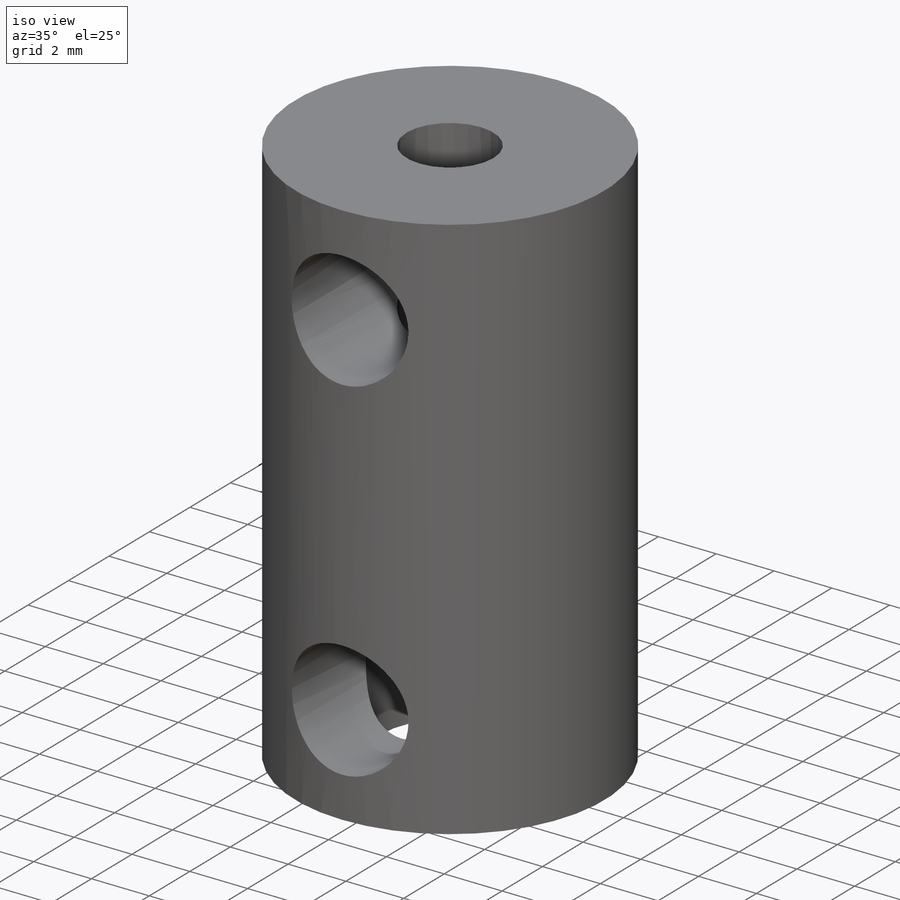
[diagram: iso view]
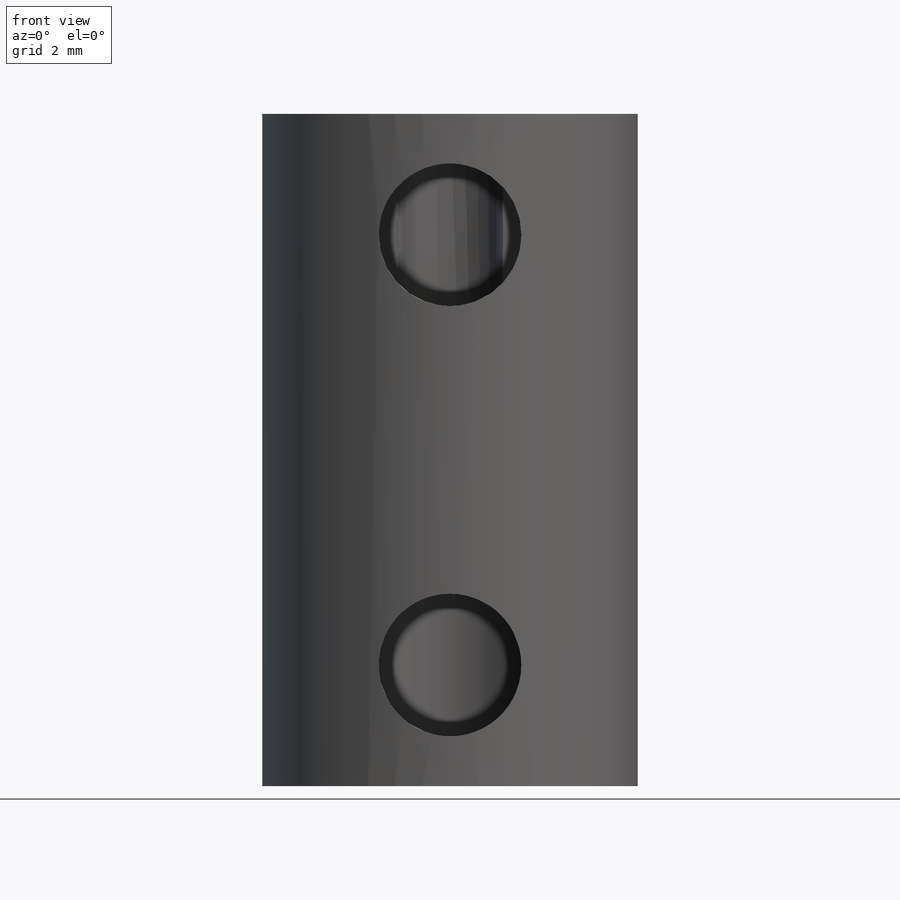
[diagram: front view]
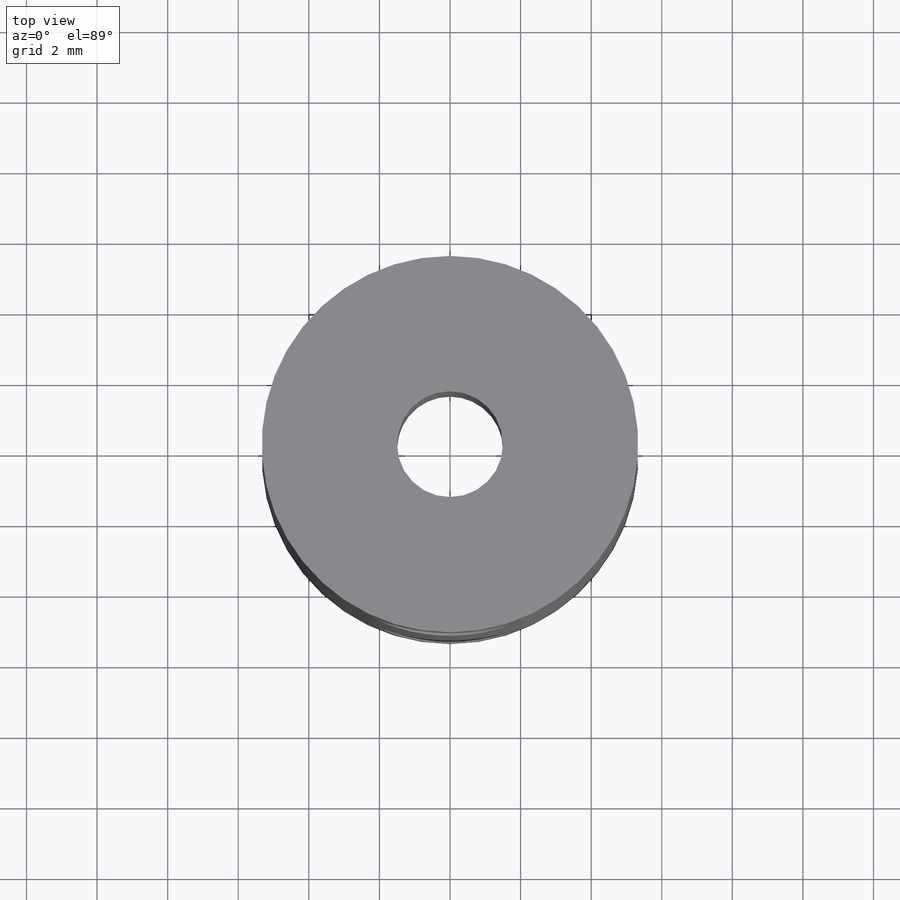
[diagram: top view]
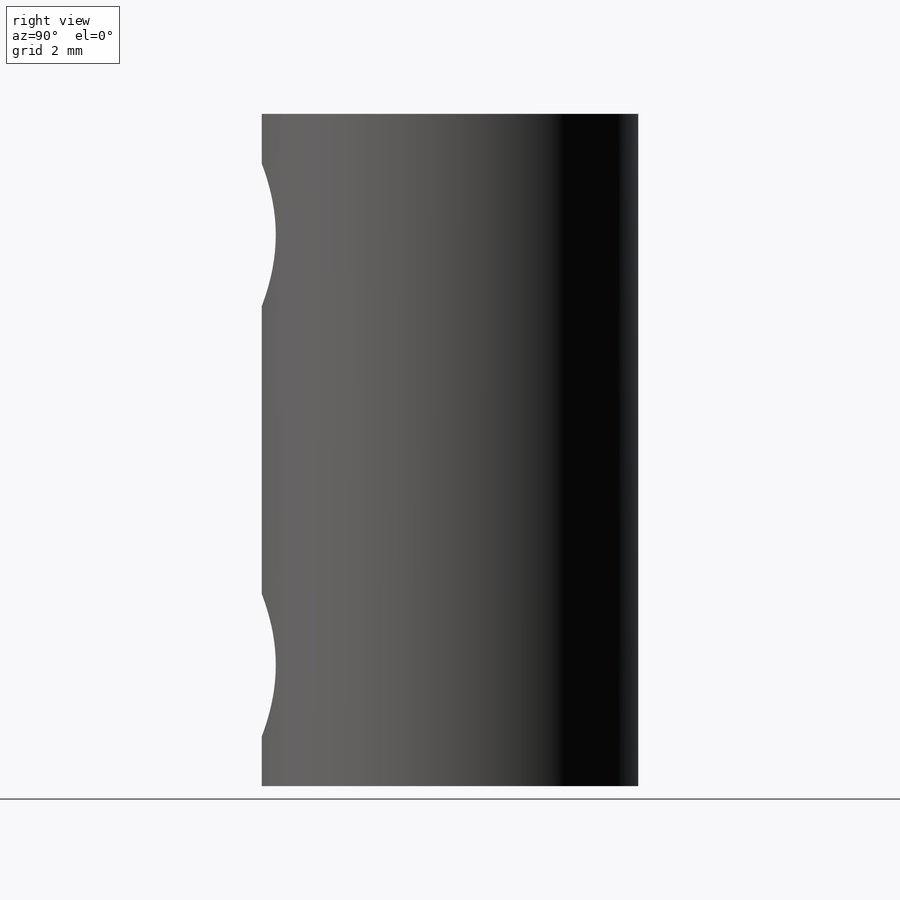
[diagram: right view]
SOLIDWORKS PART (.sldprt)
format: sldprt  version: not decoded by parser v0  size: 230,912 bytes
history: native  units: mm
features: sketch x7, hole x3, thread x2, material x1, extrude x1, plane x1 (+13 scaffold rows collapsed)
feature tree (28):
  scaffold x13  (default folders/planes/origin — collapsed)
  material  "Material <not specified>"
  sketch  "Sketch1"  dims[D1=10.668mm]
  extrude  "Boss-Extrude1"  Depth=19.05mm
  hole  "Ø3.0mm Dowel Hole3"  Diameter=3mm Depth=9.525mm
  sketch  "Sketch3"
  sketch  "Sketch2"  dims[hole-wizard template sketch: 47 standard entries collapsed; hole parameters kept: c15.Hole Depth=9.525mm c15.D3=~14.816244mm c15.Drill Angle=118.0deg]
  hole  "3/16 (0.1875) Dowel Hole1"  Diameter=4.7625mm Depth=9.525mm
  sketch  "Sketch5"
  sketch  "Sketch4"  dims[hole-wizard template sketch: 47 standard entries collapsed; hole parameters kept: c15.Hole Depth=9.525mm c15.D3=~14.816244mm c15.Drill Angle=118.0deg]
  plane  "Plane1"  Offset=9.681668mm
  hole  "#10-32 Tapped Hole1"  Diameter=4.0386mm Depth=8.181668mm
  sketch  "Sketch8"  dims[D1=3.429mm D2=3.429mm]
  sketch  "Sketch7"  dims[hole-wizard template sketch: 60 standard entries collapsed; hole parameters kept: c18.Thru Tap Drill Depth=~8.181668mm]
  thread  "Hole Thread1"  Diameter=4.826mm  [1 undecoded]
  thread  "Hole Thread2"  Diameter=4.826mm  [1 undecoded]
decode coverage: 11 of 13 modeling features carry decoded parameters
note: ~ marks probable driven/reference dimensions
note: 2 parameter values undecoded
note: suppression state not decoded; provenance and decode notes live in map.json
